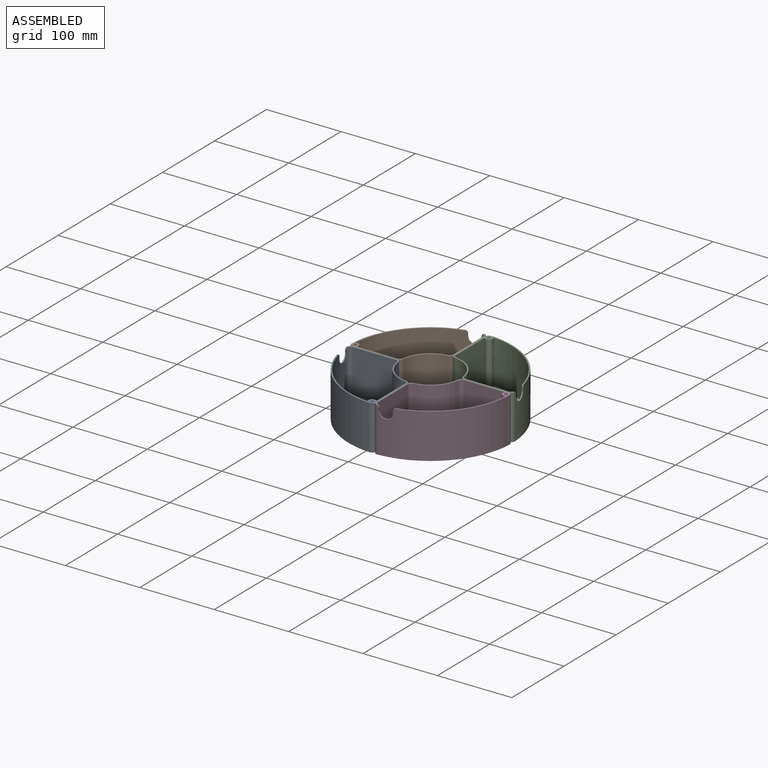
[diagram: assembled view]
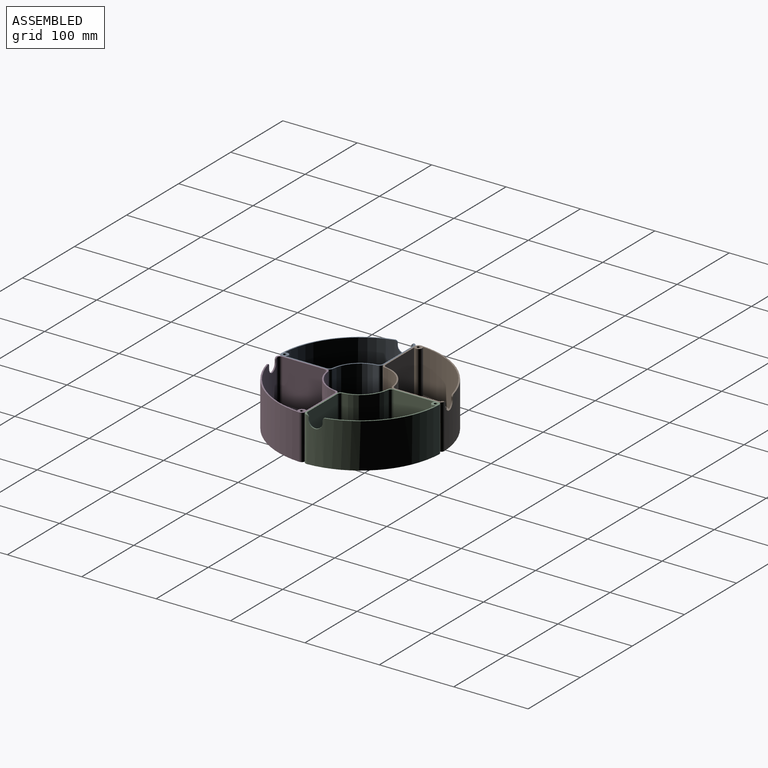
[diagram: assembled view, second angle]
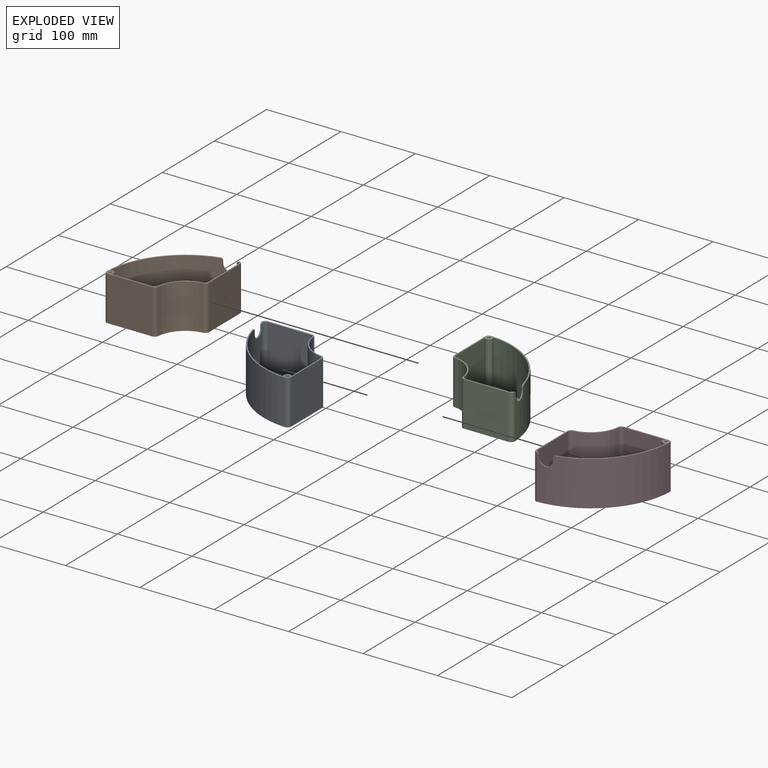
[diagram: exploded view]
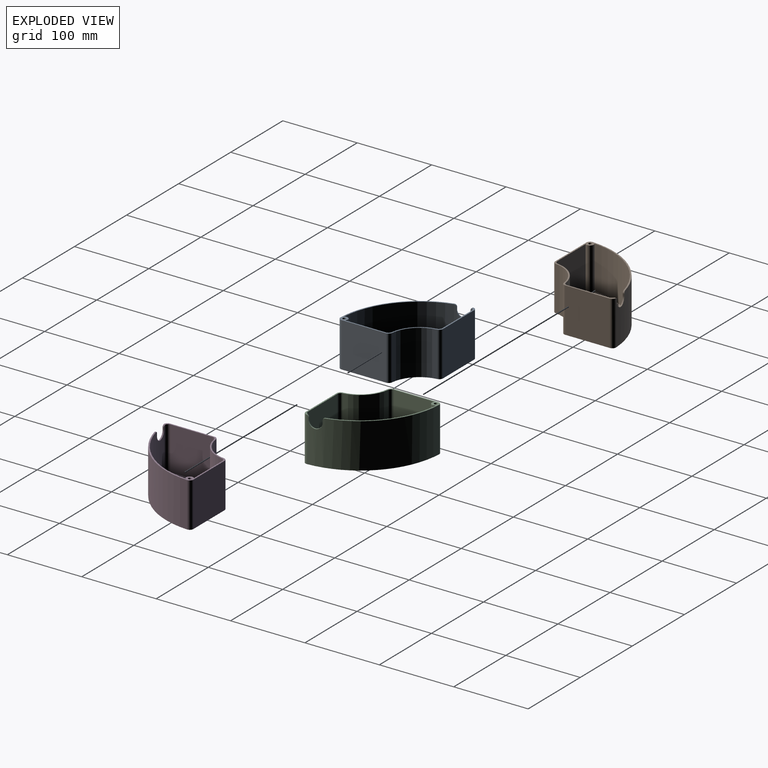
[diagram: exploded view, second angle]
ASSEMBLY  parts=4 mates=3
PART A: 26 faces, bbox 109.9x110.2x60 mm
  f0: cylinder r=40.25mm len=60mm, axis (0,0,-1), area 3258.7mm2, adj f1,f8,f9,f18
  f1: cylinder r=5mm len=60mm, axis (0,0,-1), area 438mm2, adj f0,f2,f9,f18
  f2: plane 60x59.91mm, normal (1,0,0), area 3594.5mm2, adj f1,f3,f9,f18
  f3: cylinder r=5mm len=60mm, axis (0,0,-1), area 485.5mm2, adj f2,f4,f9,f18,f25
  f4: cylinder r=110mm len=104.64mm, axis (0,0,-1), area 9507.6mm2, adj f3,f5,f9,f18,f20,f21,f22,f23
  f5: cylinder r=5mm len=60mm, axis (0,0,-1), area 485.5mm2, adj f4,f6,f9,f18
  f6: plane 60x59.91mm, normal (0,-1,0), area 3594.5mm2, adj f5,f8,f9,f18
  f7: cylinder r=2.1mm len=60mm, axis (0,0,-1), area 791.7mm2, adj f9,f18
  f8: cylinder r=5mm len=60mm, axis (0,0,-1), area 438mm2, adj f0,f6,f9,f18
  f9: plane 109.88x109.88mm, normal (0,0,-1), area 8196.5mm2, adj f0,f1,f2,f3,f4,f5,f6,f7
  f10: cylinder r=5mm len=58mm, axis (0,0,-1), area 413.7mm2, adj f11,f17,f18,f19
  f11: cylinder r=42mm len=58mm, axis (0,0,-1), area 3124.3mm2, adj f10,f12,f18,f19
  f12: cylinder r=5mm len=58mm, axis (0,0,-1), area 413.7mm2, adj f11,f13,f18,f19
  f13: plane 58x54.57mm, normal (0,1,0), area 3165mm2, adj f12,f14,f18,f19
  f14: cylinder r=5mm len=58mm, axis (0,0,-1), area 846.9mm2, adj f13,f15,f18,f19
  f15: cylinder r=108.25mm len=100.8mm, axis (0,0,-1), area 8703.1mm2, adj f14,f16,f18,f19,f20,f22,f23,f24
  f16: cylinder r=5mm len=58mm, axis (0,0,-1), area 472.5mm2, adj f15,f17,f18,f19,f21,f25
  f17: plane 58x56.52mm, normal (-1,0,0), area 3277.9mm2, adj f10,f16,f18,f19
  f18: plane 109.88x109.83mm, normal (0,0,1), area 643mm2, adj f0,f1,f2,f3,f4,f5,f6,f7
  f19: plane 106.28x106.13mm, normal (0,0,1), area 7511.8mm2, adj f10,f11,f12,f13,f14,f15,f16,f17
  f20: plane 3x1.69mm, normal (0.96,0.27,0), area 5.3mm2, adj f4,f15,f23,f24
  f21: plane 3x1.74mm, normal (-0.99,-0.14,0), area 5.3mm2, adj f4,f16,f22,f25
  f22: cylinder r=9mm len=9mm, axis (-0.14,0.99,0), area 24.1mm2, adj f4,f15,f21,f23
  f23: cylinder r=9mm len=9.06mm, axis (0.27,-0.96,0), area 24.2mm2, adj f4,f15,f20,f22
  f24: cylinder r=3mm len=3.39mm, axis (-0.27,0.96,0), area 8.3mm2, adj f4,f15,f18,f20
  f25: cylinder r=3mm len=3.47mm, axis (0.14,-0.99,0), area 9.2mm2, adj f3,f4,f16,f18,f21
PART B: same geometry as A
PART C: same geometry as A
PART D: same geometry as A
PLACE A rot(axis=(0,0,1),90deg) t=(15.89,-64.68,-10.81)mm
PLACE B t=(15.89,-64.68,-10.81)mm
PLACE C rot(axis=(0,0,-1),90deg) t=(15.89,-64.68,-10.81)mm
PLACE D rot(axis=(0,0,1),180deg) t=(15.89,-64.68,-10.81)mm
MATE fastened A.f6 <-> D.f2  axis (1,0,0) through (15.89,-139.61,19.19)mm
MATE fastened D.f6 <-> C.f2  axis (0,1,0) through (90.82,-64.68,19.19)mm
MATE fastened C.f6 <-> B.f2  axis (-1,0,0) through (15.89,10.24,19.19)mm
